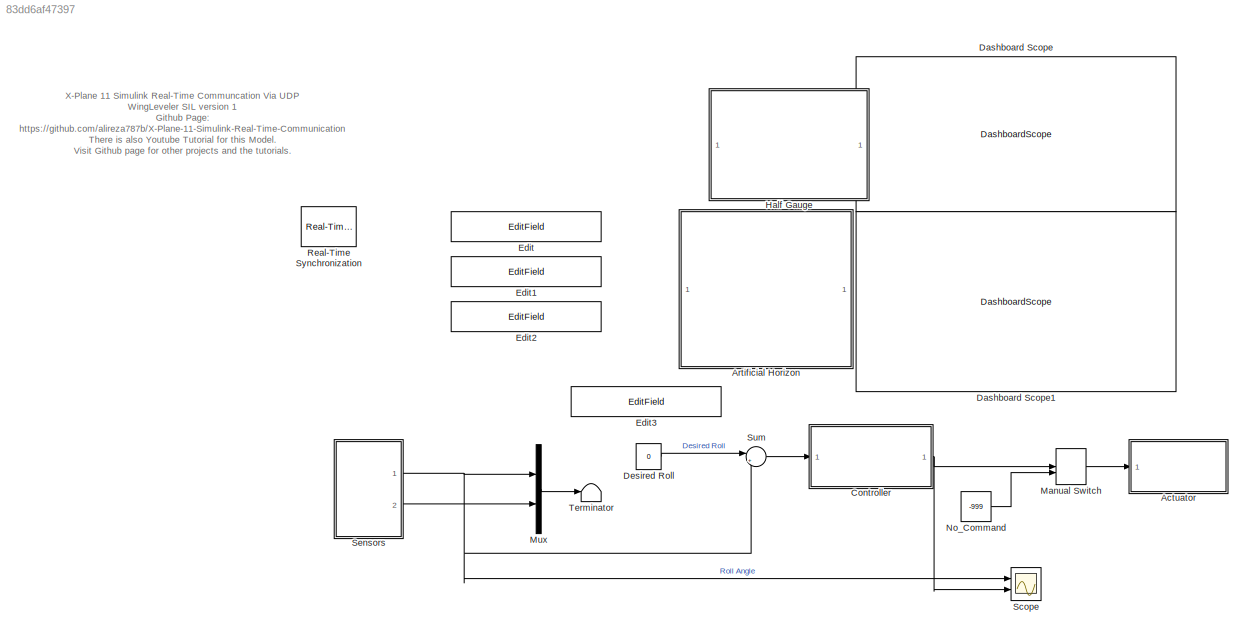
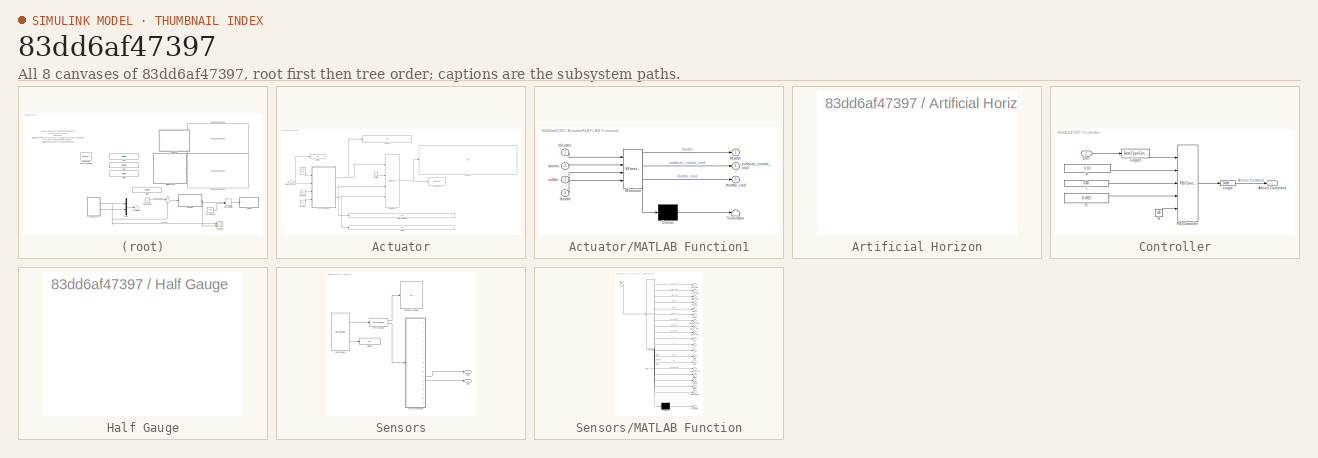
[diagram: thumbnail index - all 8 canvases of the model, root first then tree order]
MODEL slx_83dd6af47397
KIND model
CONFIG AbsTol = auto
CONFIG EnableMultiTasking = off
CONFIG FixedStep = auto
CONFIG MaxStep = auto
CONFIG MinStep = auto
CONFIG RelTol = 1e-3
CONFIG SampleTimeConstraint = Unconstrained
CONFIG Solver = ode45
CONFIG SolverName = ode45
CONFIG StartTime = 0.0
CONFIG StopTime = inf
BLOCK [SubSystem] Actuator
  Ports = [1]
  RequestExecContextInheritance = off
BLOCK [Constant] Actuator/1 byte [0]
  OutDataTypeStr = uint8
  Value = [48]
BLOCK [Inport] Actuator/Aileron Command
  IconDisplay = Port number
BLOCK [Reference] Actuator/Byte Pack  REF=etargetslib/Byte Pack
  Ports = [4, 1]
  SourceBlock = etargetslib/Byte Pack
  SourceProductBaseCode = ME
  SourceProductName = MATLAB Coder
  SourceType = Byte pack
BLOCK [Constant] Actuator/Constant
  OutDataTypeStr = single
  Value = -999
BLOCK [Constant] Actuator/Constant1
  OutDataTypeStr = single
  Value = -999
BLOCK [Constant] Actuator/Constant2
  OutDataTypeStr = single
  Value = -999
BLOCK [Display] Actuator/Display
  Decimation = 1
  Ports = [1]
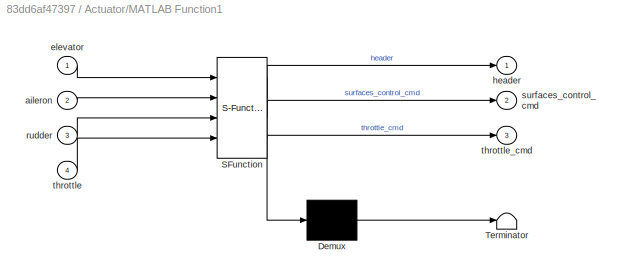
BLOCK [SubSystem] Actuator/MATLAB Function1
  ErrorFcn = Stateflow.Translate.translate
  PermitHierarchicalResolution = ExplicitOnly
  Ports = [4, 3]
  RequestExecContextInheritance = off
  SFBlockType = MATLAB Function
  TreatAsAtomicUnit = on
BLOCK [Demux] Actuator/MATLAB Function1/ Demux 
  Outputs = 1
  Ports = [1, 1]
BLOCK [S-Function] Actuator/MATLAB Function1/ SFunction 
  EnableBusSupport = on
  FunctionName = sf_sfun
  PortCounts = [4 4]
  Ports = [4, 4]
  SFcnIsStateOwnerBlock = off
  SFunctionDeploymentMode = off
  Tag = Stateflow S-Function wingLevelerSil 1
BLOCK [Terminator] Actuator/MATLAB Function1/ Terminator 
BLOCK [Inport] Actuator/MATLAB Function1/aileron
  IconDisplay = Port number
  Port = 2
BLOCK [Inport] Actuator/MATLAB Function1/elevator
  IconDisplay = Port number
BLOCK [Outport] Actuator/MATLAB Function1/header
  IconDisplay = Port number
BLOCK [Inport] Actuator/MATLAB Function1/rudder
  IconDisplay = Port number
  Port = 3
BLOCK [Outport] Actuator/MATLAB Function1/surfaces_control_cmd
  IconDisplay = Port number
  Port = 2
BLOCK [Inport] Actuator/MATLAB Function1/throttle
  IconDisplay = Port number
  Port = 4
BLOCK [Outport] Actuator/MATLAB Function1/throttle_cmd
  IconDisplay = Port number
  Port = 3
BLOCK [Display] Actuator/Packet
  Decimation = 1
  Ports = [1]
BLOCK [Display] Actuator/Surface Controls
  Decimation = 1
  Ports = [1]
BLOCK [Display] Actuator/Throttle
  Decimation = 1
  Ports = [1]
BLOCK [Reference] Actuator/UDP Send  REF=dspnetwork/UDP Send
  Ports = [1]
  SourceBlock = dspnetwork/UDP Send
  SourceProductBaseCode = SL
  SourceProductName = Simulink
  SourceType = UDP Send
BLOCK [Display] Actuator/header
  Decimation = 1
  Ports = [1]
BLOCK [SubSystem] Artificial Horizon
  DialogController = aeroblksHMICreateDDGDialog
  IsWebBlock = on
  Ports = []
  RequestExecContextInheritance = off
BLOCK [SubSystem] Controller
  Ports = [1, 1]
  RequestExecContextInheritance = off
BLOCK [Outport] Controller/Aileron Command
  IconDisplay = Port number
BLOCK [Constant] Controller/D
  OutDataTypeStr = single
  Value = 0.002
BLOCK [Inport] Controller/Error
  IconDisplay = Port number
BLOCK [Constant] Controller/I
  OutDataTypeStr = single
  Value = 0.005
BLOCK [Constant] Controller/N
  Value = 100
BLOCK [Constant] Controller/P
  OutDataTypeStr = single
  Value = 0.03
BLOCK [Reference] Controller/PID Controller  REF=simulink/Continuous/PID Controller
  Ports = [5, 1]
  SourceBlock = simulink/Continuous/PID Controller
  SourceProductBaseCode = SL
  SourceProductName = Simulink
  SourceType = PID 1dof
BLOCK [DataTypeConversion] Controller/single
  OutDataTypeStr = single
  RndMeth = Floor
  SaturateOnIntegerOverflow = off
BLOCK [DataTypeConversion] Controller/single1
  OutDataTypeStr = double
  RndMeth = Floor
  SaturateOnIntegerOverflow = off
BLOCK [DashboardScope] Dashboard Scope
  Commented = on
  ShowInitialText = off
  Ymax = +100
  Ymin = -100
BLOCK [DashboardScope] Dashboard Scope1
  Commented = on
  Ymax = +1.0
  Ymin = -1.0
BLOCK [Constant] Desired Roll
  Value = 0
BLOCK [EditField] Edit
  Alignment = Center
  ShowInitialText = on
  WebBlockId = 95
BLOCK [EditField] Edit1
  Alignment = Center
  ShowInitialText = on
  WebBlockId = 96
BLOCK [EditField] Edit2
  Alignment = Center
  ShowInitialText = on
  WebBlockId = 97
BLOCK [EditField] Edit3
  Alignment = Center
  ShowInitialText = on
  WebBlockId = 103
BLOCK [SubSystem] Half Gauge
  DialogController = hmiCreateDDGDialog
  IsWebBlock = on
  Ports = []
  RequestExecContextInheritance = off
BLOCK [ManualSwitch] Manual Switch
  CurrentSetting = 0
BLOCK [Mux] Mux
  DisplayOption = bar
  Inputs = 2
  Ports = [2, 1]
BLOCK [Constant] No_Command
  OutDataTypeStr = single
  Value = -999
BLOCK [Reference] Real-Time Synchronization  REF=sldrtlib/Real-Time
Synchronization
  Ports = []
  SourceBlock = sldrtlib/Real-Time\nSynchronization
  SourceProductBaseCode = WT
  SourceProductName = Simulink Desktop Real-Time
  SourceType = Simulink Desktop Real-Time Synchronization
BLOCK [Scope] Scope
  Floating = off
  NumInputPorts = 2
  Ports = [2]
  ScopeSpecificationString = Simulink.scopes.TimeScopeBlockCfg('CurrentConfiguration', extmgr.ConfigurationSet(extmgr.Configuration('Core','General UI',true),extmgr.Configuration('Core','Source UI',true),extmgr.Configuration('Sources','WiredSimulink',true),extmgr.Configuration('Visuals','Time Domain',true,'SerializedDisplays',{struct('MinYLimReal','-27.32914','MaxYLimReal','42.25784','YLabelReal','','MinYLimMag','0.00000','Ma...<+1974ch>
BLOCK [SubSystem] Sensors
  Ports = [0, 2]
  RequestExecContextInheritance = off
BLOCK [Reference] Sensors/Byte Unpack  REF=etargetslib/Byte Unpack
  Ports = [1, 2]
  SourceBlock = etargetslib/Byte Unpack
  SourceProductBaseCode = ME
  SourceProductName = MATLAB Coder
  SourceType = Byte Unpack
BLOCK [Display] Sensors/Display
  Decimation = 1
  Ports = [1]
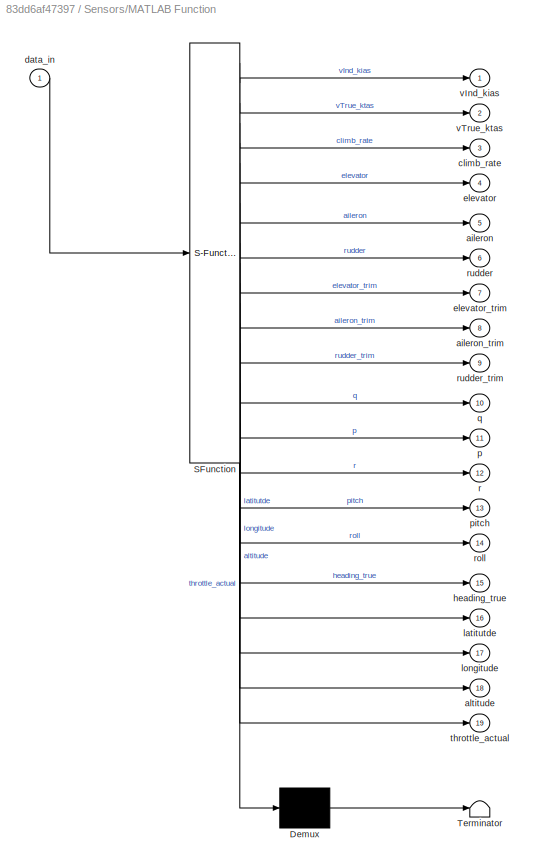
BLOCK [SubSystem] Sensors/MATLAB Function
  ErrorFcn = Stateflow.Translate.translate
  PermitHierarchicalResolution = ExplicitOnly
  Ports = [1, 19]
  RequestExecContextInheritance = off
  SFBlockType = MATLAB Function
  TreatAsAtomicUnit = on
BLOCK [Demux] Sensors/MATLAB Function/ Demux 
  Outputs = 1
  Ports = [1, 1]
BLOCK [S-Function] Sensors/MATLAB Function/ SFunction 
  EnableBusSupport = on
  FunctionName = sf_sfun
  PortCounts = [1 20]
  Ports = [1, 20]
  SFcnIsStateOwnerBlock = off
  SFunctionDeploymentMode = off
  Tag = Stateflow S-Function wingLevelerSil 2
BLOCK [Terminator] Sensors/MATLAB Function/ Terminator 
BLOCK [Outport] Sensors/MATLAB Function/aileron
  IconDisplay = Port number
  Port = 5
BLOCK [Outport] Sensors/MATLAB Function/aileron_trim
  IconDisplay = Port number
  Port = 8
BLOCK [Outport] Sensors/MATLAB Function/altitude
  IconDisplay = Port number
  Port = 18
BLOCK [Outport] Sensors/MATLAB Function/climb_rate
  IconDisplay = Port number
  Port = 3
BLOCK [Inport] Sensors/MATLAB Function/data_in
  IconDisplay = Port number
BLOCK [Outport] Sensors/MATLAB Function/elevator
  IconDisplay = Port number
  Port = 4
BLOCK [Outport] Sensors/MATLAB Function/elevator_trim
  IconDisplay = Port number
  Port = 7
BLOCK [Outport] Sensors/MATLAB Function/heading_true
  IconDisplay = Port number
  Port = 15
BLOCK [Outport] Sensors/MATLAB Function/latitutde
  IconDisplay = Port number
  Port = 16
BLOCK [Outport] Sensors/MATLAB Function/longitude
  IconDisplay = Port number
  Port = 17
BLOCK [Outport] Sensors/MATLAB Function/p
  IconDisplay = Port number
  Port = 11
BLOCK [Outport] Sensors/MATLAB Function/pitch
  IconDisplay = Port number
  Port = 13
BLOCK [Outport] Sensors/MATLAB Function/q
  IconDisplay = Port number
  Port = 10
BLOCK [Outport] Sensors/MATLAB Function/r
  IconDisplay = Port number
  Port = 12
BLOCK [Outport] Sensors/MATLAB Function/roll
  IconDisplay = Port number
  Port = 14
BLOCK [Outport] Sensors/MATLAB Function/rudder
  IconDisplay = Port number
  Port = 6
BLOCK [Outport] Sensors/MATLAB Function/rudder_trim
  IconDisplay = Port number
  Port = 9
BLOCK [Outport] Sensors/MATLAB Function/throttle_actual
  IconDisplay = Port number
  Port = 19
BLOCK [Outport] Sensors/MATLAB Function/vInd_kias
  IconDisplay = Port number
BLOCK [Outport] Sensors/MATLAB Function/vTrue_ktas
  IconDisplay = Port number
  Port = 2
BLOCK [Outport] Sensors/Pitch
  IconDisplay = Port number
  Port = 2
BLOCK [Outport] Sensors/Roll
  IconDisplay = Port number
BLOCK [Display] Sensors/Should be Header
  Decimation = 1
  Ports = [1]
BLOCK [Reference] Sensors/UDP Receive  REF=dspnetwork/UDP Receive
  Ports = [0, 2]
  SourceBlock = dspnetwork/UDP Receive
  SourceProductBaseCode = SL
  SourceProductName = Simulink
  SourceType = UDP Receive
BLOCK [Sum] Sum
  IconShape = round
  InputSameDT = off
  Inputs = |+-
  OutDataTypeStr = Inherit: Inherit via internal rule
  Ports = [2, 1]
  SaturateOnIntegerOverflow = off
BLOCK [Terminator] Terminator
ANNOTATION (root): X-Plane 11 Simulink Real-Time Communcation Via UDP WingLeveler SIL version 1 Github Page: https://github.com/alireza787b/X-Plane-11-Simulink-Real-Time-Communication There is also Youtube Tutorial for this Model. Visit Github page for other projects and the tutorials.
LINE Actuator/1 byte [0]:1 -> Actuator/Byte Pack:2
NET Actuator/Aileron Command:1 -> Actuator/Display:1, Actuator/MATLAB Function1:2
NET Actuator/Byte Pack:1 -> Actuator/Packet:1, Actuator/UDP Send:1
LINE Actuator/Constant1:1 -> Actuator/MATLAB Function1:3
LINE Actuator/Constant2:1 -> Actuator/MATLAB Function1:1
LINE Actuator/Constant:1 -> Actuator/MATLAB Function1:4
NET Actuator/MATLAB Function1:1 -> Actuator/Byte Pack:1, Actuator/header:1
NET Actuator/MATLAB Function1:2 -> Actuator/Byte Pack:3, Actuator/Surface Controls:1
NET Actuator/MATLAB Function1:3 -> Actuator/Byte Pack:4, Actuator/Throttle:1
LINE Controller/D:1 -> Controller/PID Controller:4
LINE Controller/Error:1 -> Controller/single1:1
LINE Controller/I:1 -> Controller/PID Controller:3
LINE Controller/N:1 -> Controller/PID Controller:5
LINE Controller/P:1 -> Controller/PID Controller:2
LINE Controller/PID Controller:1 -> Controller/single:1
LINE Controller/single1:1 -> Controller/PID Controller:1
LINE Controller/single:1 -> Controller/Aileron Command:1
NET Controller:1 -> Manual Switch:1, Scope:2
LINE Desired Roll:1 -> Sum:1
LINE Manual Switch:1 -> Actuator:1
LINE Mux:1 -> Terminator:1
LINE No_Command:1 -> Manual Switch:2
LINE Sensors/Byte Unpack:1 -> Sensors/Should be Header:1
LINE Sensors/Byte Unpack:2 -> Sensors/MATLAB Function:1
LINE Sensors/MATLAB Function:13 -> Sensors/Pitch:1
LINE Sensors/MATLAB Function:14 -> Sensors/Roll:1
LINE Sensors/UDP Receive:1 -> Sensors/Byte Unpack:1
LINE Sensors/UDP Receive:2 -> Sensors/Display:1
NET Sensors:1 -> Mux:1, Scope:1, Sum:2
LINE Sensors:2 -> Mux:2
LINE Sum:1 -> Controller:1
note: NET lines group one-source signal fan-out (src -> all destinations, sorted); 1:1 wires keep LINE
CHART Actuator/MATLAB Function1 states=1 transitions=1
  STATE_LABEL 'eML_blk_kernel()'
  STATE_LABEL "SCRIPT:\nfunction [header,surfaces_control_cmd,throttle_cmd] = fcn(elevator, aileron, rudder, throttle) \nheader =[uint8(68) uint8(65) uint8(84) uint8(65)];\nNo_Comand = single(-999);\n %Surface_header = typecast(uint8([uint8(8) uint8(0) uint8(0) uint8(0)]),'single')\nsurfaces_control_cmd = [1.1210388e-44 elevator aileron rudder No_Comand No_Comand No_Comand No_Comand No_Comand  ];\n%Throttle_header = t...<+187ch>"
CHART Sensors/MATLAB Function states=1 transitions=1
  STATE_LABEL 'eML_blk_kernel()'
  STATE_LABEL 'SCRIPT:\nfunction [vInd_kias,vTrue_ktas,...\n    climb_rate,...\n    elevator,aileron,rudder,...\n    elevator_trim,aileron_trim,rudder_trim,...\n    q,p,r,...\n    pitch, roll, heading_true,...\n    latitutde, longitude, altitude,...\n    throttle_actual] = decoder(data_in)\n vInd_kias = data_in(2,1);\n vTrue_ktas = data_in(4,1);\n climb_rate = data_in(4,2);\n elevator = data_in(2,3);\n aileron = data_in(3,3)...<+352ch>'
